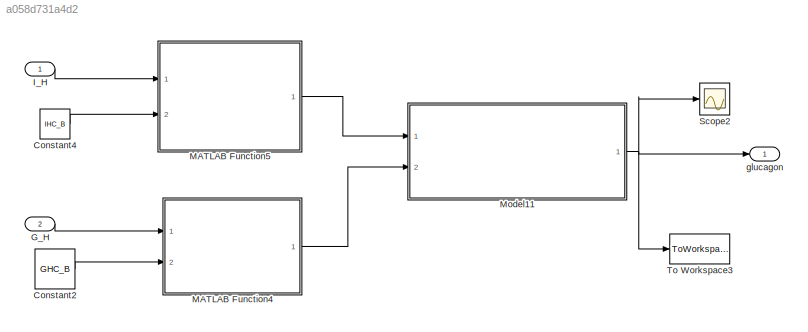
MODEL slx_a058d731a4d2
KIND model
CONFIG AbsTol = auto
CONFIG EnableMultiTasking = off
CONFIG FixedStep = auto
CONFIG MaxStep = auto
CONFIG MinStep = auto
CONFIG RelTol = 1e-3
CONFIG SampleTimeConstraint = Unconstrained
CONFIG Solver = VariableStepAuto
CONFIG SolverName = VariableStepAuto
CONFIG StartTime = 0.0
CONFIG StopTime = 10.0
BLOCK [Constant] Constant2
  Value = GHC_B
BLOCK [Constant] Constant4
  Value = IHC_B
BLOCK [Inport] G_H
  IconDisplay = Port number
  Port = 2
BLOCK [Inport] I_H
  IconDisplay = Port number
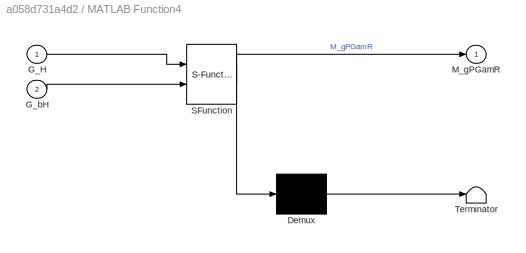
BLOCK [SubSystem] MATLAB Function4
  ErrorFcn = Stateflow.Translate.translate
  PermitHierarchicalResolution = ExplicitOnly
  Ports = [2, 1]
  RequestExecContextInheritance = off
  SFBlockType = MATLAB Function
  TreatAsAtomicUnit = on
BLOCK [Demux] MATLAB Function4/ Demux 
  Outputs = 1
  Ports = [1, 1]
BLOCK [S-Function] MATLAB Function4/ SFunction 
  EnableBusSupport = on
  FunctionName = sf_sfun
  PortCounts = [2 2]
  Ports = [2, 2]
  SFcnIsStateOwnerBlock = off
  SFunctionDeploymentMode = off
  Tag = Stateflow S-Function glucagon 5
BLOCK [Terminator] MATLAB Function4/ Terminator 
BLOCK [Inport] MATLAB Function4/G_H
  IconDisplay = Port number
BLOCK [Inport] MATLAB Function4/G_bH
  IconDisplay = Port number
  Port = 2
BLOCK [Outport] MATLAB Function4/M_gPGamR
  IconDisplay = Port number
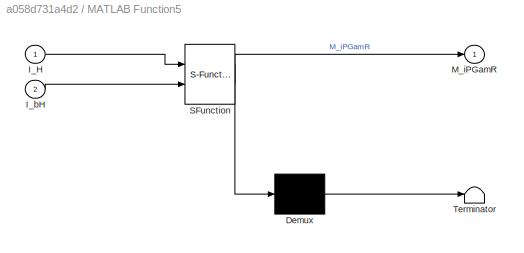
BLOCK [SubSystem] MATLAB Function5
  ErrorFcn = Stateflow.Translate.translate
  PermitHierarchicalResolution = ExplicitOnly
  Ports = [2, 1]
  RequestExecContextInheritance = off
  SFBlockType = MATLAB Function
  TreatAsAtomicUnit = on
BLOCK [Demux] MATLAB Function5/ Demux 
  Outputs = 1
  Ports = [1, 1]
BLOCK [S-Function] MATLAB Function5/ SFunction 
  EnableBusSupport = on
  FunctionName = sf_sfun
  PortCounts = [2 2]
  Ports = [2, 2]
  SFcnIsStateOwnerBlock = off
  SFunctionDeploymentMode = off
  Tag = Stateflow S-Function glucagon 6
BLOCK [Terminator] MATLAB Function5/ Terminator 
BLOCK [Inport] MATLAB Function5/I_H
  IconDisplay = Port number
BLOCK [Inport] MATLAB Function5/I_bH
  IconDisplay = Port number
  Port = 2
BLOCK [Outport] MATLAB Function5/M_iPGamR
  IconDisplay = Port number
BLOCK [ModelReference] Model11
  ModelNameDialog = gamma_block
  ModelReferenceVersion = 1.5
  Ports = [2, 1]
BLOCK [Scope] Scope2
  Floating = off
  NumInputPorts = 1
  Ports = [1]
  ScopeSpecificationString = Simulink.scopes.TimeScopeBlockCfg('CurrentConfiguration', extmgr.ConfigurationSet(extmgr.Configuration('Core','General UI',true),extmgr.Configuration('Core','Source UI',true),extmgr.Configuration('Sources','WiredSimulink',true,'DataLoggingVariableName','ScopeData1'),extmgr.Configuration('Visuals','Time Domain',true,'SerializedDisplays',{struct('MinYLimReal','-0.46805','MaxYLimReal','4.21243','YLab...<+1366ch>
BLOCK [ToWorkspace] To Workspace3
  MaxDataPoints = inf
  Ports = [1]
  SampleTime = -1
  SaveFormat = Structure With Time
  VariableName = Glucagon
BLOCK [Outport] glucagon
  IconDisplay = Port number
LINE Constant2:1 -> MATLAB Function4:2
LINE Constant4:1 -> MATLAB Function5:2
LINE G_H:1 -> MATLAB Function4:1
LINE I_H:1 -> MATLAB Function5:1
LINE MATLAB Function4:1 -> Model11:2
LINE MATLAB Function5:1 -> Model11:1
NET Model11:1 -> Scope2:1, To Workspace3:1, glucagon:1
note: NET lines group one-source signal fan-out (src -> all destinations, sorted); 1:1 wires keep LINE
CHART MATLAB Function4 states=1 transitions=1
  STATE_LABEL 'eML_blk_kernel()'
  STATE_LABEL 'SCRIPT:\nfunction M_gPGamR = fcn(G_H, G_bH)\nM_gPGamR = 1.31 - 0.61*tanh(1.06*(G_H/G_bH - 0.47));\n'
CHART MATLAB Function5 states=1 transitions=1
  STATE_LABEL 'eML_blk_kernel()'
  STATE_LABEL 'SCRIPT:\nfunction M_iPGamR = fcn(I_H, I_bH)\n\nM_iPGamR = 2.93 - 2.09*(tanh(4.18*(I_H/I_bH - 0.62)));\n'
